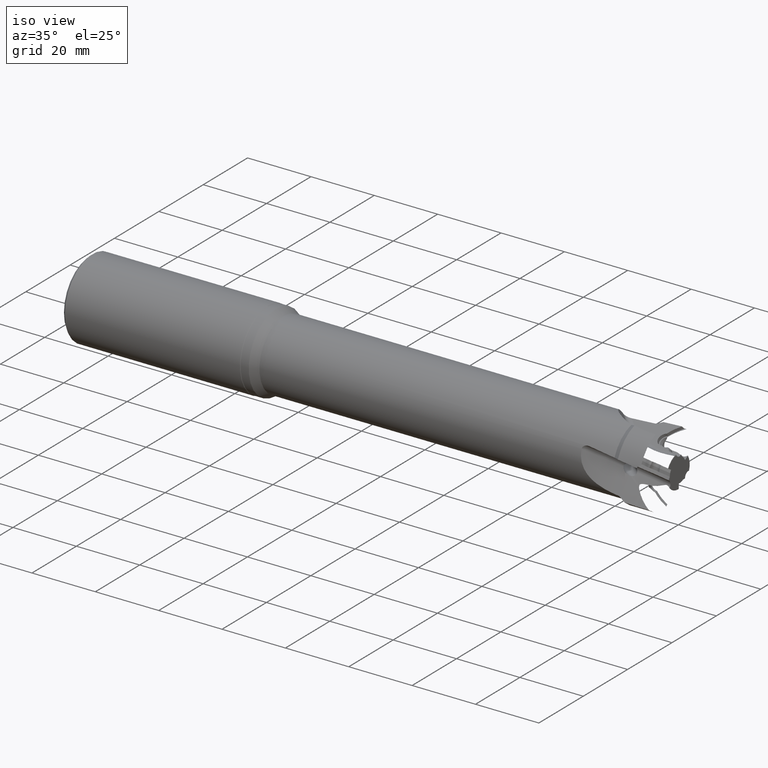
[diagram: clean part render]
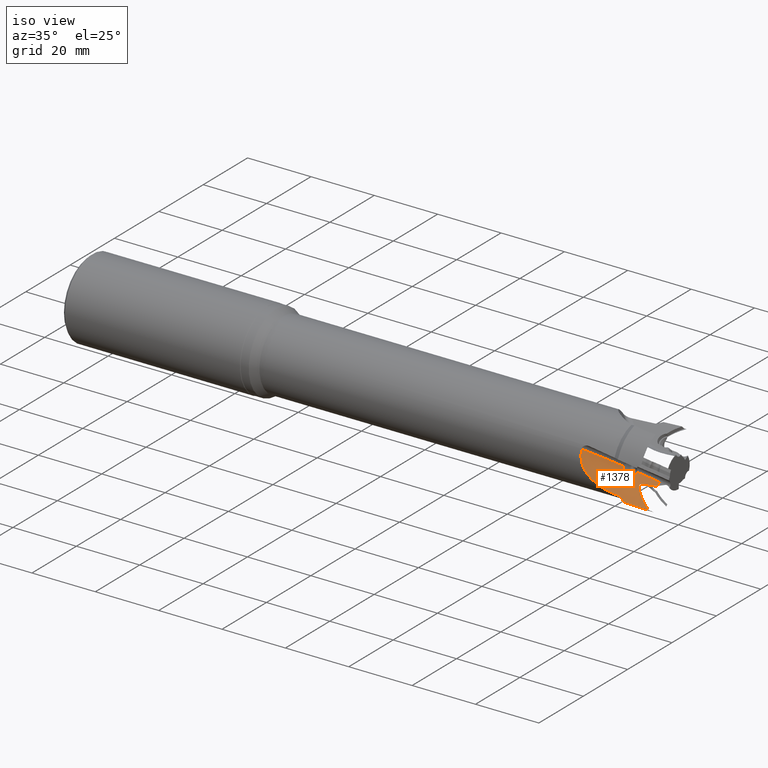
[diagram: same view with one face highlighted and labeled with its STEP entity id]
A machine part, iso view. The second image highlights one B-rep face of the part: STEP entity #1378.
In plain terms, the highlighted cylindrical surface (partial cylindrical patch) has radius 26.3192 mm, axis along (0.1219, 0.4963, 0.8596).
Its self-contained STEP definition (entity closure, byte-faithful):
#28 = CARTESIAN_POINT ( 'NONE',  ( -13.03205080756886000, -7.992576462500347900, -7.557692868269073800 ) ) ;
#51 = CARTESIAN_POINT ( 'NONE',  ( -5.689946946029629700, -4.317708363578987900, -3.979696029959555400 ) ) ;
#53 = CARTESIAN_POINT ( 'NONE',  ( -7.500924673721525200, -6.094901991674457300, -6.769319655197011600 ) ) ;
#101 = CARTESIAN_POINT ( 'NONE',  ( -10.18398444645806000, -7.862009398907740200, -9.070928771020332300 ) ) ;
#147 = CARTESIAN_POINT ( 'NONE',  ( -3.526050500247046100, -26.29913613204946200, 10.44856002411993700 ) ) ;
#171 = CARTESIAN_POINT ( 'NONE',  ( -23.07953077838761400, -10.89024481231380600, 1.589639035504989900 ) ) ;
#184 = CARTESIAN_POINT ( 'NONE',  ( -19.21292515205994200, -9.992846947491623100, -4.620180101903342200 ) ) ;
#223 = CARTESIAN_POINT ( 'NONE',  ( -10.32122929528068800, -4.152651368610607500, -2.057674855280379400 ) ) ;
#234 = CARTESIAN_POINT ( 'NONE',  ( -13.51269220058174300, -5.076683317574064000, -1.534035655236737300 ) ) ;
#349 = LINE ( 'NONE', #4470, #3840 ) ;
#355 = EDGE_CURVE ( 'NONE', #3948, #2679, #1420, .T. ) ;
#398 = CARTESIAN_POINT ( 'NONE',  ( -6.982639439080985600, -4.469607208334723600, -3.982642564857665800 ) ) ;
#400 = CARTESIAN_POINT ( 'NONE',  ( -6.116735068709886000, -6.710942455524881100, -8.162628215792588900 ) ) ;
#429 = B_SPLINE_CURVE_WITH_KNOTS ( 'NONE', 3,
 ( #4383, #101, #2972, #821, #3325, #1164 ),
 .UNSPECIFIED., .F., .F.,
 ( 4, 2, 4 ),
 ( 1.049615221640893000E-016, 0.003439158824163268300, 0.006878317648326431700 ),
 .UNSPECIFIED. ) ;
#481 = VERTEX_POINT ( 'NONE', #1254 ) ;
#503 = DIRECTION ( 'NONE',  ( 0.0000000000000000000, -0.8660254037844362700, 0.5000000000000041100 ) ) ;
#506 = CARTESIAN_POINT ( 'NONE',  ( -13.96976808857759900, -4.765659819229885100, -0.5030943230700442000 ) ) ;
#526 = CARTESIAN_POINT ( 'NONE',  ( -22.78875681886088600, -10.99173266444119600, 0.5489012428032317100 ) ) ;
#542 = CARTESIAN_POINT ( 'NONE',  ( -17.51894533413320700, -9.367757506604323900, -5.778467457408636300 ) ) ;
#571 = CARTESIAN_POINT ( 'NONE',  ( -10.49284025336788400, -4.338866460269666300, -2.309067231846371200 ) ) ;
#588 = CARTESIAN_POINT ( 'NONE',  ( -13.81916815560618500, -4.966174368650684700, -1.038623920690531700 ) ) ;
#660 = VERTEX_POINT ( 'NONE', #28 ) ;
#753 = CYLINDRICAL_SURFACE ( 'NONE', #4479, 26.31920538541934800 ) ;
#759 = CARTESIAN_POINT ( 'NONE',  ( -8.739852035016705000, -5.032099687822031900, -4.433913485598320200 ) ) ;
#777 = CARTESIAN_POINT ( 'NONE',  ( -7.624566365757954300, -4.574056370567491900, -3.989991221924982700 ) ) ;
#779 = CARTESIAN_POINT ( 'NONE',  ( -4.449423755956779300, -7.266171499267764800, -9.223788984079270400 ) ) ;
#821 = CARTESIAN_POINT ( 'NONE',  ( -6.784288114828474800, -7.456262791552971300, -9.403544653293272000 ) ) ;
#866 = CIRCLE ( 'NONE', #4207, 26.31920538541934100 ) ;
#890 = CARTESIAN_POINT ( 'NONE',  ( -22.40270897330500700, -10.99566531206400200, -0.4534235559316804900 ) ) ;
#900 = CARTESIAN_POINT ( 'NONE',  ( -14.38685503440376000, -8.332374461027045600, -7.198342265860779000 ) ) ;
#926 = DIRECTION ( 'NONE',  ( 0.1218693434051477400, 0.4962730758206650400, 0.8595701817498644400 ) ) ;
#928 = ORIENTED_EDGE ( 'NONE', *, *, #2622, .F. ) ;
#934 = CARTESIAN_POINT ( 'NONE',  ( -10.75196325818232900, -4.512293880007320900, -2.483264312590808500 ) ) ;
#947 = CARTESIAN_POINT ( 'NONE',  ( -13.93523586296846300, -4.858691319542516300, -0.7188584050269039000 ) ) ;
#955 = CARTESIAN_POINT ( 'NONE',  ( -11.29999999999992100, -8.087237837638936000, -8.865471457145535100 ) ) ;
#1109 = DIRECTION ( 'NONE',  ( 0.0000000000000000000, -0.8660254037844363800, 0.5000000000000040000 ) ) ;
#1110 = CARTESIAN_POINT ( 'NONE',  ( -8.749888422160863000, -5.190543005531940100, -4.719707039830898200 ) ) ;
#1119 = CARTESIAN_POINT ( 'NONE',  ( -8.005795255573867000, -4.655195785119868600, -4.014910167885172900 ) ) ;
#1121 = CARTESIAN_POINT ( 'NONE',  ( -23.36141874420567900, -10.24915597156069900, 3.994346238199798700 ) ) ;
#1164 = CARTESIAN_POINT ( 'NONE',  ( -4.481419488993315000, -7.396463666301064800, -9.449461637209195100 ) ) ;
#1213 = EDGE_CURVE ( 'NONE', #660, #481, #2065, .T. ) ;
#1231 = CARTESIAN_POINT ( 'NONE',  ( -21.91978228289452700, -10.91298591252848900, -1.417630045655044400 ) ) ;
#1254 = CARTESIAN_POINT ( 'NONE',  ( -11.29999999999992100, -8.087237837638936000, -8.865471457145535100 ) ) ;
#1265 = CARTESIAN_POINT ( 'NONE',  ( -10.26605559627746400, -3.918353970863329000, -1.650522928760020000 ) ) ;
#1277 = CARTESIAN_POINT ( 'NONE',  ( -11.28007512482566100, -4.752783023736958200, -2.611653676518739700 ) ) ;
#1287 = CARTESIAN_POINT ( 'NONE',  ( -13.96976808857759900, -4.765659819229885100, -0.5030943230700442000 ) ) ;
#1306 = ORIENTED_EDGE ( 'NONE', *, *, #3424, .T. ) ;
#1349 = CARTESIAN_POINT ( 'NONE',  ( -13.03205080756886000, -7.992576462500347900, -7.557692868269073800 ) ) ;
#1378 = ADVANCED_FACE ( 'NONE', ( #3620 ), #753, .F. ) ;
#1420 = LINE ( 'NONE', #2131, #2611 ) ;
#1466 = CARTESIAN_POINT ( 'NONE',  ( -3.343246485139332400, -25.55472651831850000, 11.73791529674467600 ) ) ;
#1468 = CARTESIAN_POINT ( 'NONE',  ( -8.644986485417792500, -5.353292064597823700, -5.057149554263720100 ) ) ;
#1469 = EDGE_CURVE ( 'NONE', #1764, #2560, #3065, .T. ) ;
#1480 = CARTESIAN_POINT ( 'NONE',  ( -8.373331442407076600, -4.764596263034140300, -4.084988658727416700 ) ) ;
#1551 = B_SPLINE_CURVE_WITH_KNOTS ( 'NONE', 3,
 ( #3268, #3632, #1832, #4336, #2187, #51, #2556, #398, #2915, #777, #3282, #1119, #3650, #1480, #3991, #1843, #4351, #2903, #759, #3270, #1110, #3634, #1468, #3982, #1833, #4337, #2189, #53, #2559, #400, #2917, #779 ),
 .UNSPECIFIED., .F., .F.,
 ( 4, 2, 2, 2, 2, 2, 2, 2, 2, 2, 2, 2, 2, 2, 2, 4 ),
 ( 0.0000000000000000000, 0.0007759060847262787600, 0.001551812169452557500, 0.003103624338905117700, 0.003879530423631396400, 0.004267483465994536200, 0.004655436508357677800, 0.005043389550720820200, 0.005237366071902391400, 0.005431342593083962600, 0.005819295635447103300, 0.006207248677810244800, 0.006983154762536529700, 0.007759060847262813600, 0.009310873016715379800, 0.01241449735562051200 ),
 .UNSPECIFIED. ) ;
#1565 = EDGE_LOOP ( 'NONE', ( #1649, #928, #4623, #2103, #3154, #1306, #2624, #1809, #1879 ) ) ;
#1598 = CARTESIAN_POINT ( 'NONE',  ( -21.34890168892049900, -10.75622354847592300, -2.322728536572886700 ) ) ;
#1644 = CARTESIAN_POINT ( 'NONE',  ( -11.95481863583081900, -4.951510226441834900, -2.533149008560451300 ) ) ;
#1649 = ORIENTED_EDGE ( 'NONE', *, *, #4415, .F. ) ;
#1711 = CARTESIAN_POINT ( 'NONE',  ( -4.449423755956779300, -7.266171499267764800, -9.223788984079270400 ) ) ;
#1764 = VERTEX_POINT ( 'NONE', #4619 ) ;
#1808 = AXIS2_PLACEMENT_3D ( 'NONE', #147, #2653, #503 ) ;
#1809 = ORIENTED_EDGE ( 'NONE', *, *, #3795, .T. ) ;
#1832 = CARTESIAN_POINT ( 'NONE',  ( -4.158860193737647000, -4.138736025853213500, -3.800625004243602100 ) ) ;
#1833 = CARTESIAN_POINT ( 'NONE',  ( -8.361783759685781800, -5.589526497595474400, -5.590507229495385900 ) ) ;
#1843 = CARTESIAN_POINT ( 'NONE',  ( -8.628054060121680600, -4.900989153349576600, -4.237795921280602200 ) ) ;
#1879 = ORIENTED_EDGE ( 'NONE', *, *, #355, .F. ) ;
#1946 = CARTESIAN_POINT ( 'NONE',  ( -23.36141874420567900, -10.24915597156069900, 3.994346238199798700 ) ) ;
#1962 = CARTESIAN_POINT ( 'NONE',  ( -20.70158456814000700, -10.54119693782615000, -3.156567538437514500 ) ) ;
#2011 = CARTESIAN_POINT ( 'NONE',  ( -12.60504465317327000, -5.069610342370165900, -2.275609308138983400 ) ) ;
#2049 = VERTEX_POINT ( 'NONE', #2460 ) ;
#2065 = B_SPLINE_CURVE_WITH_KNOTS ( 'NONE', 3,
 ( #1349, #2746, #3112, #955 ),
 .UNSPECIFIED., .F., .F.,
 ( 4, 4 ),
 ( 2.568559867681212200E-007, 0.002172639330015243100 ),
 .UNSPECIFIED. ) ;
#2103 = ORIENTED_EDGE ( 'NONE', *, *, #1469, .T. ) ;
#2131 = CARTESIAN_POINT ( 'NONE',  ( -3.526050500247685200, -3.506035660856120700, -2.711042668589774200 ) ) ;
#2135 = DIRECTION ( 'NONE',  ( 0.1218693434051477100, 0.4962730758206649300, 0.8595701817498642100 ) ) ;
#2187 = CARTESIAN_POINT ( 'NONE',  ( -4.920139863791523500, -4.234240628755469700, -3.918903576450046200 ) ) ;
#2189 = CARTESIAN_POINT ( 'NONE',  ( -7.949845293799080900, -5.846731739281509000, -6.191027311989513400 ) ) ;
#2306 = CARTESIAN_POINT ( 'NONE',  ( -23.28485158735117000, -10.70395092944478700, 2.631154089245776100 ) ) ;
#2319 = CARTESIAN_POINT ( 'NONE',  ( -19.73592067083120600, -10.19112949637321800, -4.174329067838319100 ) ) ;
#2350 = CARTESIAN_POINT ( 'NONE',  ( -10.28905966460467300, -4.091462692581420600, -1.961219052849579900 ) ) ;
#2365 = CARTESIAN_POINT ( 'NONE',  ( -13.18705758866453700, -5.105206539224970400, -1.871391783160968100 ) ) ;
#2460 = CARTESIAN_POINT ( 'NONE',  ( -3.660987757751625400, -4.055523546435192200, -3.662783604556306000 ) ) ;
#2556 = CARTESIAN_POINT ( 'NONE',  ( -6.208501875169655000, -4.369556761465426900, -3.983324114041173000 ) ) ;
#2559 = CARTESIAN_POINT ( 'NONE',  ( -7.170549852701217500, -6.254329209450996400, -7.138121608193225500 ) ) ;
#2560 = VERTEX_POINT ( 'NONE', #506 ) ;
#2611 = VECTOR ( 'NONE', #4638, 1000.000000000000100 ) ;
#2622 = EDGE_CURVE ( 'NONE', #2928, #2049, #349, .T. ) ;
#2624 = ORIENTED_EDGE ( 'NONE', *, *, #1213, .T. ) ;
#2653 = DIRECTION ( 'NONE',  ( 0.1218693434051477400, 0.4962730758206650400, 0.8595701817498644400 ) ) ;
#2674 = CARTESIAN_POINT ( 'NONE',  ( -22.99321225105396800, -10.93558412224321900, 1.237933538699263100 ) ) ;
#2679 = VERTEX_POINT ( 'NONE', #3379 ) ;
#2688 = CARTESIAN_POINT ( 'NONE',  ( -18.10506540580950100, -9.581466874065876400, -5.422042680687287200 ) ) ;
#2719 = CARTESIAN_POINT ( 'NONE',  ( -10.42376597288296300, -4.277267402681920000, -2.232959804172248500 ) ) ;
#2739 = CARTESIAN_POINT ( 'NONE',  ( -13.65655382335337900, -5.045107278923869600, -1.342814859975094600 ) ) ;
#2740 = EDGE_CURVE ( 'NONE', #2560, #4425, #866, .T. ) ;
#2746 = CARTESIAN_POINT ( 'NONE',  ( -12.46820977486513700, -8.010545918013958700, -8.012494261347333300 ) ) ;
#2903 = CARTESIAN_POINT ( 'NONE',  ( -8.722250877157753400, -4.998744366367658300, -4.379841287495604100 ) ) ;
#2915 = CARTESIAN_POINT ( 'NONE',  ( -7.240187564296386200, -4.506427271010049500, -3.981009230139126200 ) ) ;
#2917 = CARTESIAN_POINT ( 'NONE',  ( -5.326175596266666400, -6.990631711790278800, -8.746540072661479900 ) ) ;
#2928 = VERTEX_POINT ( 'NONE', #3513 ) ;
#2972 = CARTESIAN_POINT ( 'NONE',  ( -9.057350604991345500, -7.689020087417781600, -9.214199745960778300 ) ) ;
#3048 = CARTESIAN_POINT ( 'NONE',  ( -22.67070574921080400, -11.00299468314265100, 0.2106100157539149100 ) ) ;
#3057 = DIRECTION ( 'NONE',  ( -0.1218693434051219800, -0.4962730758206665400, -0.8595701817498669900 ) ) ;
#3059 = CARTESIAN_POINT ( 'NONE',  ( -15.68208632968351800, -8.733437381182170600, -6.731221207512000100 ) ) ;
#3065 = B_SPLINE_CURVE_WITH_KNOTS ( 'NONE', 3,
 ( #4500, #1265, #3432, #2350, #223, #2719, #571, #3096, #934, #3448, #1277, #3809, #1644, #4149, #2011, #4519, #2365, #234, #2739, #588, #3106, #947, #3466, #1287 ),
 .UNSPECIFIED., .F., .F.,
 ( 4, 2, 2, 2, 2, 2, 2, 2, 2, 2, 2, 4 ),
 ( 0.0000000000000000000, 0.0003550089419784791900, 0.0007100178839569583700, 0.001065026825935437600, 0.001420035767913916700, 0.002130053651870876500, 0.002840071535827836100, 0.003550089419784795700, 0.004260107303741755700, 0.004970125187698715700, 0.005325134129677195700, 0.005680143071655674800 ),
 .UNSPECIFIED. ) ;
#3087 = CARTESIAN_POINT ( 'NONE',  ( -3.526050500247046100, -26.29913613204946200, 10.44856002411993700 ) ) ;
#3096 = CARTESIAN_POINT ( 'NONE',  ( -10.65778529070214600, -4.456882723235686700, -2.434687589331958600 ) ) ;
#3106 = CARTESIAN_POINT ( 'NONE',  ( -13.86545537269219400, -4.934053899197626200, -0.9324242294346735100 ) ) ;
#3112 = CARTESIAN_POINT ( 'NONE',  ( -11.88978670237073500, -8.040599589014512100, -8.447108198574222000 ) ) ;
#3154 = ORIENTED_EDGE ( 'NONE', *, *, #2740, .T. ) ;
#3268 = CARTESIAN_POINT ( 'NONE',  ( -3.660987757751625400, -4.055523546435192200, -3.662783604556306000 ) ) ;
#3270 = CARTESIAN_POINT ( 'NONE',  ( -8.766240728439120400, -5.129987697916854800, -4.602539351833007300 ) ) ;
#3282 = CARTESIAN_POINT ( 'NONE',  ( -7.752690621734593900, -4.598758574668695000, -3.994953379603845400 ) ) ;
#3325 = CARTESIAN_POINT ( 'NONE',  ( -5.637849178791873900, -7.396463666301068300, -9.449461637209193300 ) ) ;
#3379 = CARTESIAN_POINT ( 'NONE',  ( -4.481419488993315000, -7.396463666301064800, -9.449461637209195100 ) ) ;
#3399 = CARTESIAN_POINT ( 'NONE',  ( -22.25275536631494300, -10.97705979818726400, -0.7791627945495012100 ) ) ;
#3415 = CARTESIAN_POINT ( 'NONE',  ( -13.03205080756886000, -7.992576462500347900, -7.557692868269073800 ) ) ;
#3424 = EDGE_CURVE ( 'NONE', #4425, #660, #4104, .T. ) ;
#3432 = CARTESIAN_POINT ( 'NONE',  ( -10.26132893934922500, -3.973053951655102400, -1.755376752644080700 ) ) ;
#3440 = DIRECTION ( 'NONE',  ( 0.0000000000000000000, -0.8660254037844362700, 0.5000000000000041100 ) ) ;
#3448 = CARTESIAN_POINT ( 'NONE',  ( -11.05589787444332500, -4.667215338744948200, -2.591164832649500900 ) ) ;
#3451 = CIRCLE ( 'NONE', #1808, 26.31920538541934100 ) ;
#3466 = CARTESIAN_POINT ( 'NONE',  ( -13.95912983666454600, -4.815564805641719700, -0.6113638779529477800 ) ) ;
#3513 = CARTESIAN_POINT ( 'NONE',  ( -3.526050500247685200, -3.506035660856120700, -2.711042668589774200 ) ) ;
#3620 = FACE_OUTER_BOUND ( 'NONE', #1565, .T. ) ;
#3632 = CARTESIAN_POINT ( 'NONE',  ( -3.908736290546424900, -4.099518098791826900, -3.738984404494247300 ) ) ;
#3634 = CARTESIAN_POINT ( 'NONE',  ( -8.689470855457941000, -5.301938563382337900, -4.946473564547011900 ) ) ;
#3650 = CARTESIAN_POINT ( 'NONE',  ( -8.130892073235990800, -4.686614287789121900, -4.029278643883367600 ) ) ;
#3763 = CARTESIAN_POINT ( 'NONE',  ( -21.73755103584932900, -10.86757211562676100, -1.728377618186948800 ) ) ;
#3795 = EDGE_CURVE ( 'NONE', #481, #2679, #429, .T. ) ;
#3809 = CARTESIAN_POINT ( 'NONE',  ( -11.73076729955477800, -4.895315625973752000, -2.582394158932018100 ) ) ;
#3840 = VECTOR ( 'NONE', #3057, 1000.000000000000100 ) ;
#3948 = VERTEX_POINT ( 'NONE', #1711 ) ;
#3982 = CARTESIAN_POINT ( 'NONE',  ( -8.489979357245458000, -5.501470910566999000, -5.384765990861107600 ) ) ;
#3991 = CARTESIAN_POINT ( 'NONE',  ( -8.492273822322561100, -4.813088112151550700, -4.129096977339298900 ) ) ;
#4090 = CARTESIAN_POINT ( 'NONE',  ( -23.35462492151236400, -10.51287602742715100, 3.317662790091367300 ) ) ;
#4104 = B_SPLINE_CURVE_WITH_KNOTS ( 'NONE', 3,
 ( #1946, #4090, #2306, #171, #2674, #526, #3048, #890, #3399, #1231, #3763, #1598, #4106, #1962, #4472, #2319, #184, #2688, #542, #3059, #900, #3415 ),
 .UNSPECIFIED., .F., .F.,
 ( 4, 2, 2, 2, 2, 2, 2, 2, 2, 2, 4 ),
 ( 0.0000000000000000000, 0.002146312635660519500, 0.003219468953490779000, 0.004292625271321039000, 0.005365781589151298900, 0.006438937906981558000, 0.007512094224811818900, 0.008585250542642079700, 0.01073156317830259100, 0.01287787581396310600, 0.01717050108528413200 ),
 .UNSPECIFIED. ) ;
#4106 = CARTESIAN_POINT ( 'NONE',  ( -21.14158615502432800, -10.69011798448985600, -2.608089144266234600 ) ) ;
#4149 = CARTESIAN_POINT ( 'NONE',  ( -12.39543090106828100, -5.039386651450864300, -2.378568579126343800 ) ) ;
#4207 = AXIS2_PLACEMENT_3D ( 'NONE', #3087, #926, #3440 ) ;
#4336 = CARTESIAN_POINT ( 'NONE',  ( -4.664738904552055300, -4.205567354759935500, -3.889677848791404100 ) ) ;
#4337 = CARTESIAN_POINT ( 'NONE',  ( -8.092151282619573400, -5.762372105086652300, -5.993787799461287600 ) ) ;
#4351 = CARTESIAN_POINT ( 'NONE',  ( -8.666253749631579200, -4.932941225085349000, -4.281372618099317700 ) ) ;
#4383 = CARTESIAN_POINT ( 'NONE',  ( -11.29999999999992100, -8.087237837638936000, -8.865471457145535100 ) ) ;
#4415 = EDGE_CURVE ( 'NONE', #2049, #3948, #1551, .T. ) ;
#4425 = VERTEX_POINT ( 'NONE', #1121 ) ;
#4470 = CARTESIAN_POINT ( 'NONE',  ( -3.526050500247685200, -3.506035660856120700, -2.711042668589774200 ) ) ;
#4472 = CARTESIAN_POINT ( 'NONE',  ( -20.46796700244549800, -10.45803204671485000, -3.420614214508435500 ) ) ;
#4479 = AXIS2_PLACEMENT_3D ( 'NONE', #1466, #2135, #1109 ) ;
#4500 = CARTESIAN_POINT ( 'NONE',  ( -10.28560411761207900, -3.867337258165674600, -1.544079647590379100 ) ) ;
#4519 = CARTESIAN_POINT ( 'NONE',  ( -13.00382588688462500, -5.102852630242096200, -2.020321822706590000 ) ) ;
#4619 = CARTESIAN_POINT ( 'NONE',  ( -10.28560411761207900, -3.867337258165674600, -1.544079647590379100 ) ) ;
#4623 = ORIENTED_EDGE ( 'NONE', *, *, #4642, .T. ) ;
#4638 = DIRECTION ( 'NONE',  ( -0.1218693434051219800, -0.4962730758206665400, -0.8595701817498669900 ) ) ;
#4642 = EDGE_CURVE ( 'NONE', #2928, #1764, #3451, .T. ) ;